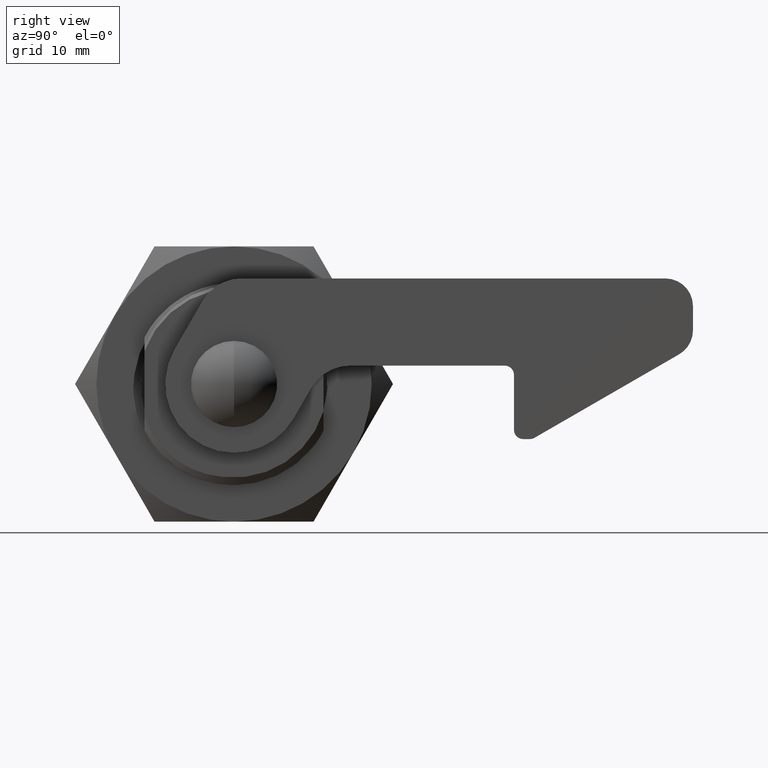
[diagram: clean part render]
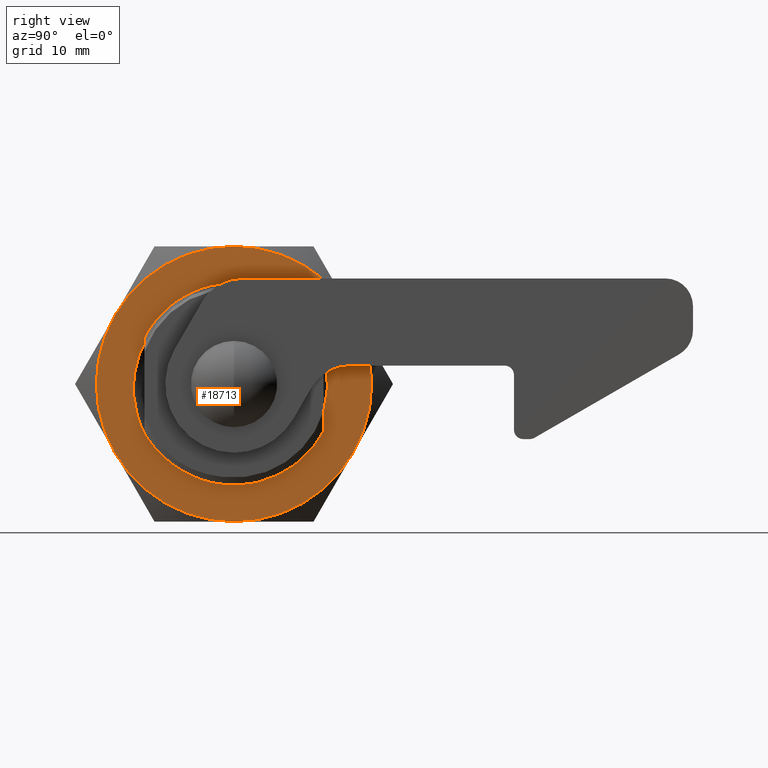
[diagram: same view with one face highlighted and labeled with its STEP entity id]
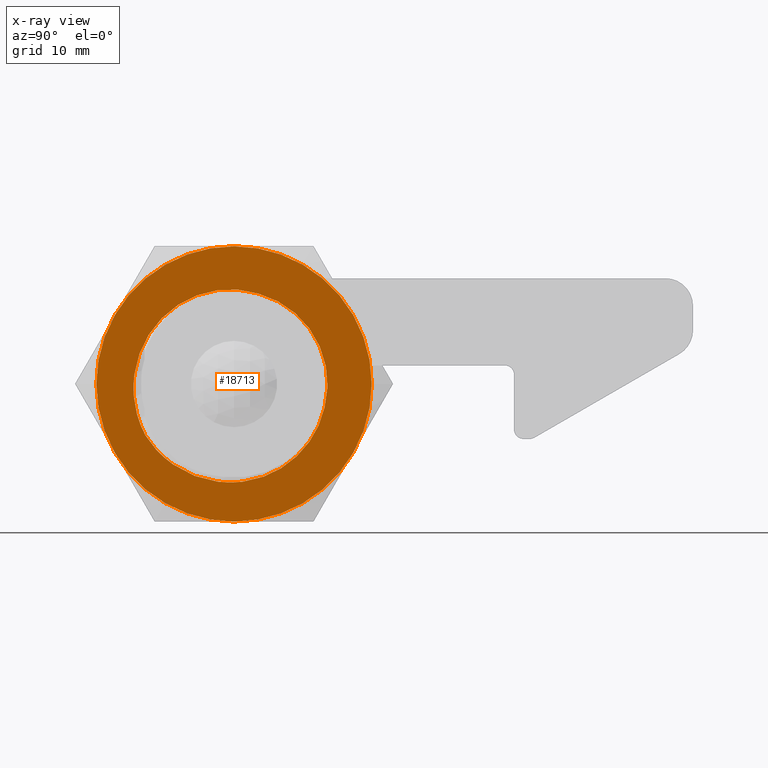
[diagram: x-ray of the same camera — body ghosted, the highlighted face saturated]
A machine part, right view. The second image highlights one B-rep face of the part: STEP entity #18713.
The next image is the same camera in x-ray: the body ghosted, the highlighted face saturated — about 0% of this face is hidden behind the body in this view.
In plain terms, the highlighted planar face has unit normal (-1, 0, 0).
Its self-contained STEP definition (entity closure, byte-faithful):
#20 = CARTESIAN_POINT ( 'NONE',  ( 9.638937201804241200, -5.000000000000006200, -3.441095731973845800 ) ) ;
#113 = CARTESIAN_POINT ( 'NONE',  ( -0.7491318615024874500, -4.999999999999996400, 10.33308777078296000 ) ) ;
#203 = CARTESIAN_POINT ( 'NONE',  ( -8.619407604147705000, -5.000000000000000900, 6.333025607650469600 ) ) ;
#232 = DIRECTION ( 'NONE',  ( 0.0000000000000000000, 1.000000000000000000, 0.0000000000000000000 ) ) ;
#687 = DIRECTION ( 'NONE',  ( 0.0000000000000000000, 0.0000000000000000000, 1.000000000000000000 ) ) ;
#1137 = ORIENTED_EDGE ( 'NONE', *, *, #17302, .T. ) ;
#1396 = EDGE_CURVE ( 'NONE', #1576, #3634, #3508, .T. ) ;
#1576 = VERTEX_POINT ( 'NONE', #5989 ) ;
#1843 = VERTEX_POINT ( 'NONE', #10515 ) ;
#2014 = CARTESIAN_POINT ( 'NONE',  ( -5.150565388679468400, -5.000000000000000900, -9.651778640270753900 ) ) ;
#2102 = CARTESIAN_POINT ( 'NONE',  ( 4.852672220566260500, -4.999999999999996400, -9.389442033987098300 ) ) ;
#2194 = CARTESIAN_POINT ( 'NONE',  ( 9.854779545596841200, -4.999999999995449900, -2.592184427791759800 ) ) ;
#2288 = CARTESIAN_POINT ( 'NONE',  ( -2.887396043328178700, -4.999999999999998200, 10.00964325858394600 ) ) ;
#2379 = CARTESIAN_POINT ( 'NONE',  ( -9.805157073379851000, -5.000000000000001800, 4.524716647803884100 ) ) ;
#2455 = EDGE_LOOP ( 'NONE', ( #16773, #15636, #27253, #22678, #5815, #7973 ) ) ;
#2625 = CARTESIAN_POINT ( 'NONE',  ( -10.78667158833198800, -5.000000000000000000, -2.843706243014712000 ) ) ;
#2913 = VERTEX_POINT ( 'NONE', #21080 ) ;
#3383 = DIRECTION ( 'NONE',  ( -0.0000000000000000000, -1.000000000000000000, -0.0000000000000000000 ) ) ;
#3508 = CIRCLE ( 'NONE', #16236, 14.99999999984458100 ) ;
#3634 = VERTEX_POINT ( 'NONE', #8472 ) ;
#4077 = DIRECTION ( 'NONE',  ( -0.0000000000000000000, -1.000000000000000000, -0.0000000000000000000 ) ) ;
#4178 = CARTESIAN_POINT ( 'NONE',  ( -3.538098540741268800, -4.999999999999999100, -10.30691911433999100 ) ) ;
#4271 = CARTESIAN_POINT ( 'NONE',  ( 6.275943887850023600, -4.999999999999999100, -8.380862123255395700 ) ) ;
#4363 = CARTESIAN_POINT ( 'NONE',  ( 2.682492182260685100, -5.000000000000000000, 9.830581655873318800 ) ) ;
#4448 = CARTESIAN_POINT ( 'NONE',  ( -4.130265647580450200, -5.000000000000000900, 9.621697935946748700 ) ) ;
#4543 = CARTESIAN_POINT ( 'NONE',  ( -10.44157008223177900, -5.000000000000004400, 2.905771480749146800 ) ) ;
#4565 = CARTESIAN_POINT ( 'NONE',  ( -9.666904424037920100, -5.000000000000000000, -5.581189911867869400 ) ) ;
#4781 = CARTESIAN_POINT ( 'NONE',  ( -10.36071793622376100, -5.000000000000000000, -4.280474703494713000 ) ) ;
#5815 = ORIENTED_EDGE ( 'NONE', *, *, #18686, .T. ) ;
#5989 = CARTESIAN_POINT ( 'NONE',  ( -9.765044891690349400E-014, -5.000000000000000000, 14.99999999984460100 ) ) ;
#6021 = EDGE_CURVE ( 'NONE', #25735, #11402, #14921, .T. ) ;
#6334 = CARTESIAN_POINT ( 'NONE',  ( -1.414320372416033400, -4.999999999999995600, -10.69588938915782200 ) ) ;
#6422 = DIRECTION ( 'NONE',  ( 0.0000000000000000000, 1.000000000000000000, 0.0000000000000000000 ) ) ;
#6428 = CARTESIAN_POINT ( 'NONE',  ( 7.226782964558676500, -4.999999999999993800, -7.503261956684021100 ) ) ;
#6557 = ORIENTED_EDGE ( 'NONE', *, *, #28000, .F. ) ;
#6613 = CARTESIAN_POINT ( 'NONE',  ( -5.307977201119404000, -4.999999999999998200, 9.087251415557743100 ) ) ;
#6643 = CARTESIAN_POINT ( 'NONE',  ( 0.0000000000000000000, -5.000000000000000000, 0.0000000000000000000 ) ) ;
#6713 = CARTESIAN_POINT ( 'NONE',  ( -10.76305664415665900, -5.000000000000006200, 1.649752460926788400 ) ) ;
#6736 = CARTESIAN_POINT ( 'NONE',  ( -7.856057407233602200, -5.000000000000000000, -7.919678671687544900 ) ) ;
#7073 = B_SPLINE_CURVE_WITH_KNOTS ( 'NONE', 3,
 ( #15554, #2625, #4781, #19897 ),
 .UNSPECIFIED., .F., .F.,
 ( 4, 4 ),
 ( 1.054656235235956700E-016, 0.004421761626893663500 ),
 .UNSPECIFIED. ) ;
#7084 = CIRCLE ( 'NONE', #17287, 14.99999999984458100 ) ;
#7643 = EDGE_CURVE ( 'NONE', #1843, #24861, #13496, .T. ) ;
#7971 = DIRECTION ( 'NONE',  ( -0.0000000000000000000, -1.000000000000000000, -0.0000000000000000000 ) ) ;
#7973 = ORIENTED_EDGE ( 'NONE', *, *, #6021, .T. ) ;
#8472 = CARTESIAN_POINT ( 'NONE',  ( -12.99038105663200000, -5.000000000000000000, 7.499999999922290600 ) ) ;
#8500 = CARTESIAN_POINT ( 'NONE',  ( -0.1102707083155850100, -4.999999999999989300, -10.74123442100537500 ) ) ;
#8599 = CARTESIAN_POINT ( 'NONE',  ( 8.067051736108254500, -4.999999999999999100, -6.509766569931755100 ) ) ;
#8780 = CARTESIAN_POINT ( 'NONE',  ( -6.422518212492810200, -5.000000000000000000, 8.404591546600812500 ) ) ;
#8873 = CARTESIAN_POINT ( 'NONE',  ( -10.93379493164639600, -4.999999999999999100, 0.3676373433193436100 ) ) ;
#8879 = CARTESIAN_POINT ( 'NONE',  ( 9.854779545596841200, -4.999999999995449900, -2.592184427791759800 ) ) ;
#9362 = VERTEX_POINT ( 'NONE', #12578 ) ;
#9775 = FACE_BOUND ( 'NONE', #21433, .T. ) ;
#10450 = CIRCLE ( 'NONE', #22012, 14.99999999984458100 ) ;
#10515 = CARTESIAN_POINT ( 'NONE',  ( -12.99038105663201900, -5.000000000000000000, -7.499999999922219600 ) ) ;
#10638 = VERTEX_POINT ( 'NONE', #27309 ) ;
#10690 = CARTESIAN_POINT ( 'NONE',  ( 1.176857826528975700, -5.000000000000000000, -10.63067362096821700 ) ) ;
#10781 = CARTESIAN_POINT ( 'NONE',  ( 8.778916920157769300, -5.000000000000000000, -5.418554700547577600 ) ) ;
#10865 = CARTESIAN_POINT ( 'NONE',  ( 1.843587548614458800, -5.000000000000000900, 10.06724437853415400 ) ) ;
#10960 = CARTESIAN_POINT ( 'NONE',  ( -7.434648564287187800, -4.999999999999996400, 7.596545352344830500 ) ) ;
#10988 = CARTESIAN_POINT ( 'NONE',  ( 0.0000000000000000000, -5.000000000000000000, 0.0000000000000000000 ) ) ;
#11056 = CARTESIAN_POINT ( 'NONE',  ( -10.95137420624734800, -4.999999999999998200, -0.9397717886165578600 ) ) ;
#11402 = VERTEX_POINT ( 'NONE', #25754 ) ;
#11672 = EDGE_CURVE ( 'NONE', #18803, #9362, #11945, .T. ) ;
#11945 = B_SPLINE_CURVE_WITH_KNOTS ( 'NONE', 3,
 ( #4565, #21761, #6736, #21856 ),
 .UNSPECIFIED., .F., .F.,
 ( 4, 4 ),
 ( 8.036095970540328500E-017, 0.004421758462768273800 ),
 .UNSPECIFIED. ) ;
#12003 = DIRECTION ( 'NONE',  ( -0.0000000000000000000, -1.000000000000000000, -0.0000000000000000000 ) ) ;
#12578 = CARTESIAN_POINT ( 'NONE',  ( -6.647646987011669700, -5.000000000000000000, -8.764062387729389100 ) ) ;
#12774 = CARTESIAN_POINT ( 'NONE',  ( -6.647646987011669700, -5.000000000000000000, -8.764062387729389100 ) ) ;
#12862 = CARTESIAN_POINT ( 'NONE',  ( 2.449263051062681400, -4.999999999999993800, -10.36071787088453400 ) ) ;
#12955 = CARTESIAN_POINT ( 'NONE',  ( 9.344957942948045800, -5.000000000000006200, -4.256413508494223800 ) ) ;
#13046 = CARTESIAN_POINT ( 'NONE',  ( 0.5509005036531096100, -4.999999999999996400, 10.27053448166372400 ) ) ;
#13144 = CARTESIAN_POINT ( 'NONE',  ( -8.339841270712954100, -4.999999999999997300, 6.670531429958162000 ) ) ;
#13171 = DIRECTION ( 'NONE',  ( 0.0000000000000000000, 0.0000000000000000000, 1.000000000000000000 ) ) ;
#13424 = ORIENTED_EDGE ( 'NONE', *, *, #20515, .F. ) ;
#13496 = CIRCLE ( 'NONE', #19034, 14.99999999984458100 ) ;
#13498 = B_SPLINE_CURVE_WITH_KNOTS ( 'NONE', 3,
 ( #12774, #25733, #14943, #2014, #17112, #4178, #19276, #6334, #21459, #8500, #23658, #10690, #25828, #12862, #28023, #15039, #2102, #17207, #4271, #19371, #6428, #21553, #8599, #23745, #10781, #25916, #12955, #20, #15125, #2194 ),
 .UNSPECIFIED., .F., .F.,
 ( 4, 2, 2, 2, 2, 2, 2, 2, 2, 2, 2, 2, 2, 2, 4 ),
 ( 5.434005713344057700E-017, 0.001305055688224699500, 0.002610111376449344400, 0.005220222752898635000, 0.006525278441123279200, 0.007830334129347924300, 0.009135389817572569400, 0.01044044550579721400, 0.01305055688224650300, 0.01435561257047115000, 0.01566066825869579300, 0.01696572394692043300, 0.01827077963514507600, 0.01957583532336971300, 0.02088089101159435300 ),
 .UNSPECIFIED. ) ;
#13616 = DIRECTION ( 'NONE',  ( 0.0000000000000000000, 1.000000000000000000, 0.0000000000000000000 ) ) ;
#13744 = VERTEX_POINT ( 'NONE', #8879 ) ;
#14921 = CIRCLE ( 'NONE', #20113, 14.99999999984458100 ) ;
#14943 = CARTESIAN_POINT ( 'NONE',  ( -5.918259123207601400, -5.000000000000000900, -9.241884770765413000 ) ) ;
#15039 = CARTESIAN_POINT ( 'NONE',  ( 4.086199617792537700, -4.999999999999999100, -9.784762768436820600 ) ) ;
#15125 = CARTESIAN_POINT ( 'NONE',  ( 9.760954598865389200, -5.000000000000002700, -3.019498928660155500 ) ) ;
#15212 = CARTESIAN_POINT ( 'NONE',  ( -1.608695768567571300, -4.999999999999999100, 10.26771121295459100 ) ) ;
#15310 = CARTESIAN_POINT ( 'NONE',  ( -9.387070100990213100, -5.000000000000001800, 5.278776332791164100 ) ) ;
#15339 = DIRECTION ( 'NONE',  ( 0.0000000000000000000, 0.0000000000000000000, 1.000000000000000000 ) ) ;
#15554 = CARTESIAN_POINT ( 'NONE',  ( -10.91372415477802000, -5.000000000000000000, -1.375000026695415900 ) ) ;
#15636 = ORIENTED_EDGE ( 'NONE', *, *, #1396, .T. ) ;
#15878 = CIRCLE ( 'NONE', #27482, 10.19000000000000000 ) ;
#16236 = AXIS2_PLACEMENT_3D ( 'NONE', #20922, #7971, #23113 ) ;
#16298 = CARTESIAN_POINT ( 'NONE',  ( 0.0000000000000000000, -5.000000000000000000, 0.0000000000000000000 ) ) ;
#16773 = ORIENTED_EDGE ( 'NONE', *, *, #16935, .F. ) ;
#16775 = EDGE_CURVE ( 'NONE', #3634, #1843, #7084, .T. ) ;
#16935 = EDGE_CURVE ( 'NONE', #1576, #11402, #22991, .T. ) ;
#17017 = CARTESIAN_POINT ( 'NONE',  ( 0.0000000000000000000, -5.000000000000000000, 0.0000000000000000000 ) ) ;
#17112 = CARTESIAN_POINT ( 'NONE',  ( -4.751847506375965800, -4.999999999999999100, -9.834890410719964400 ) ) ;
#17207 = CARTESIAN_POINT ( 'NONE',  ( 5.933202804801651600, -4.999999999999998200, -8.648836026409112400 ) ) ;
#17287 = AXIS2_PLACEMENT_3D ( 'NONE', #17017, #4077, #19182 ) ;
#17302 = EDGE_CURVE ( 'NONE', #10638, #13744, #15878, .T. ) ;
#17391 = CARTESIAN_POINT ( 'NONE',  ( -3.310564338449126300, -5.000000000000002700, 9.896351109613478400 ) ) ;
#17414 = PLANE ( 'NONE',  #26388 ) ;
#17486 = CARTESIAN_POINT ( 'NONE',  ( -10.29941504282285100, -5.000000000000000900, 3.320974963856185600 ) ) ;
#18468 = DIRECTION ( 'NONE',  ( 8.881784197001252300E-016, 0.0000000000000000000, 1.000000000000000000 ) ) ;
#18523 = B_SPLINE_CURVE_WITH_KNOTS ( 'NONE', 3,
 ( #4363, #21644, #10865, #26016, #13046, #113, #15212, #2288, #17391, #4448, #19557, #6613, #21736, #8780, #23936, #10960, #26104, #13144, #203, #15310, #2379, #17486, #4543, #19649, #6713, #21832, #8873, #24033, #11056, #26204 ),
 .UNSPECIFIED., .F., .F.,
 ( 4, 2, 2, 2, 2, 2, 2, 2, 2, 2, 2, 2, 2, 2, 4 ),
 ( 4.596912361788801400E-005, 0.001350443569155663400, 0.002654918014693438800, 0.005263866905768990100, 0.006568341351306765900, 0.007872815796844541800, 0.009177290242382316700, 0.01048176468792009200, 0.01178623913345786700, 0.01309071357899564300, 0.01569966247007119000, 0.01700413691560896700, 0.01830861136114674300, 0.01961308580668451700, 0.02091756025222229000 ),
 .UNSPECIFIED. ) ;
#18686 = EDGE_CURVE ( 'NONE', #24861, #25735, #10450, .T. ) ;
#18713 = ADVANCED_FACE ( 'NONE', ( #21257, #9775 ), #17414, .F. ) ;
#18803 = VERTEX_POINT ( 'NONE', #19876 ) ;
#19034 = AXIS2_PLACEMENT_3D ( 'NONE', #24970, #12003, #27144 ) ;
#19182 = DIRECTION ( 'NONE',  ( 0.0000000000000000000, 0.0000000000000000000, 1.000000000000000000 ) ) ;
#19276 = CARTESIAN_POINT ( 'NONE',  ( -2.703687009923020600, -4.999999999999996400, -10.52205155327999900 ) ) ;
#19365 = CARTESIAN_POINT ( 'NONE',  ( 0.0000000000000000000, -5.000000000000000000, 0.0000000000000000000 ) ) ;
#19371 = CARTESIAN_POINT ( 'NONE',  ( 6.922260182655265700, -4.999999999999999100, -7.808401426838557300 ) ) ;
#19557 = CARTESIAN_POINT ( 'NONE',  ( -4.529724541998622700, -4.999999999999998200, 9.459822060423013200 ) ) ;
#19629 = CARTESIAN_POINT ( 'NONE',  ( 0.0000000000000000000, -5.000000000000000000, -14.99999999984460100 ) ) ;
#19649 = CARTESIAN_POINT ( 'NONE',  ( -10.67280194800956700, -5.000000000000003600, 2.071352330506805100 ) ) ;
#19876 = CARTESIAN_POINT ( 'NONE',  ( -9.666904424037920100, -5.000000000000000000, -5.581189911867869400 ) ) ;
#19897 = CARTESIAN_POINT ( 'NONE',  ( -9.666904424037920100, -5.000000000000000000, -5.581189911867869400 ) ) ;
#20113 = AXIS2_PLACEMENT_3D ( 'NONE', #16298, #3383, #18468 ) ;
#20515 = EDGE_CURVE ( 'NONE', #9362, #13744, #13498, .T. ) ;
#20558 = EDGE_CURVE ( 'NONE', #10638, #2913, #18523, .T. ) ;
#20583 = CARTESIAN_POINT ( 'NONE',  ( 12.99038105663201900, -5.000000000000000000, -7.499999999922209800 ) ) ;
#20922 = CARTESIAN_POINT ( 'NONE',  ( 0.0000000000000000000, -5.000000000000000000, 0.0000000000000000000 ) ) ;
#21080 = CARTESIAN_POINT ( 'NONE',  ( -10.91372415477802000, -5.000000000000000000, -1.375000026695415900 ) ) ;
#21257 = FACE_OUTER_BOUND ( 'NONE', #2455, .T. ) ;
#21433 = EDGE_LOOP ( 'NONE', ( #25281, #1137, #13424, #26481, #6557 ) ) ;
#21459 = CARTESIAN_POINT ( 'NONE',  ( -0.9763425491826662700, -4.999999999999987600, -10.72848333765721000 ) ) ;
#21547 = DIRECTION ( 'NONE',  ( 0.0000000000000000000, 0.0000000000000000000, 1.000000000000000000 ) ) ;
#21553 = CARTESIAN_POINT ( 'NONE',  ( 7.798446571042400200, -4.999999999999993800, -6.855051912225538200 ) ) ;
#21644 = CARTESIAN_POINT ( 'NONE',  ( 2.265968095758975400, -4.999999999999999100, 9.962840086623973700 ) ) ;
#21736 = CARTESIAN_POINT ( 'NONE',  ( -5.687092063002585200, -5.000000000000000000, 8.876358354759073400 ) ) ;
#21761 = CARTESIAN_POINT ( 'NONE',  ( -8.887358922856515500, -5.000000000000000000, -6.832407374676039400 ) ) ;
#21832 = CARTESIAN_POINT ( 'NONE',  ( -10.89355189215758400, -5.000000000000007100, 0.7978947520152160900 ) ) ;
#21856 = CARTESIAN_POINT ( 'NONE',  ( -6.647646987011669700, -5.000000000000000000, -8.764062387729389100 ) ) ;
#22012 = AXIS2_PLACEMENT_3D ( 'NONE', #10988, #26132, #13171 ) ;
#22678 = ORIENTED_EDGE ( 'NONE', *, *, #7643, .T. ) ;
#22991 = CIRCLE ( 'NONE', #26007, 14.99999999984460100 ) ;
#23113 = DIRECTION ( 'NONE',  ( 0.0000000000000000000, 0.0000000000000000000, 1.000000000000000000 ) ) ;
#23658 = CARTESIAN_POINT ( 'NONE',  ( 0.3204096086988811300, -5.000000000000000900, -10.72210813724865900 ) ) ;
#23745 = CARTESIAN_POINT ( 'NONE',  ( 8.557856274789577000, -4.999999999999997300, -5.790185217756810900 ) ) ;
#23936 = CARTESIAN_POINT ( 'NONE',  ( -6.771746850444237100, -4.999999999999997300, 8.148317128610893100 ) ) ;
#24033 = CARTESIAN_POINT ( 'NONE',  ( -10.96284637270156100, -4.999999999999999100, -0.5017813460787102800 ) ) ;
#24861 = VERTEX_POINT ( 'NONE', #19629 ) ;
#24970 = CARTESIAN_POINT ( 'NONE',  ( 0.0000000000000000000, -5.000000000000000000, 0.0000000000000000000 ) ) ;
#25281 = ORIENTED_EDGE ( 'NONE', *, *, #20558, .F. ) ;
#25733 = CARTESIAN_POINT ( 'NONE',  ( -6.289393308947480500, -5.000000000000000000, -9.014394201248492800 ) ) ;
#25735 = VERTEX_POINT ( 'NONE', #20583 ) ;
#25754 = CARTESIAN_POINT ( 'NONE',  ( 12.99038105663197800, -5.000000000000000000, 7.499999999922299500 ) ) ;
#25828 = CARTESIAN_POINT ( 'NONE',  ( 1.602656479458642600, -4.999999999999995600, -10.55869831165239800 ) ) ;
#25916 = CARTESIAN_POINT ( 'NONE',  ( 9.172787568695069300, -5.000000000000002700, -4.651824404657038100 ) ) ;
#26007 = AXIS2_PLACEMENT_3D ( 'NONE', #19365, #6422, #21547 ) ;
#26016 = CARTESIAN_POINT ( 'NONE',  ( 0.9872765554697112700, -5.000000000000000900, 10.22112004195336800 ) ) ;
#26104 = CARTESIAN_POINT ( 'NONE',  ( -7.748317254809352400, -5.000000000000000000, 7.301043156370388600 ) ) ;
#26132 = DIRECTION ( 'NONE',  ( -0.0000000000000000000, -1.000000000000000000, -0.0000000000000000000 ) ) ;
#26204 = CARTESIAN_POINT ( 'NONE',  ( -10.91372415477802000, -5.000000000000000000, -1.375000026695415900 ) ) ;
#26388 = AXIS2_PLACEMENT_3D ( 'NONE', #6643, #232, #15339 ) ;
#26481 = ORIENTED_EDGE ( 'NONE', *, *, #11672, .F. ) ;
#26596 = CARTESIAN_POINT ( 'NONE',  ( 0.0000000000000000000, -4.999999999995449900, 0.0000000000000000000 ) ) ;
#27144 = DIRECTION ( 'NONE',  ( 1.776356839400250500E-015, 0.0000000000000000000, 1.000000000000000000 ) ) ;
#27253 = ORIENTED_EDGE ( 'NONE', *, *, #16775, .T. ) ;
#27309 = CARTESIAN_POINT ( 'NONE',  ( 2.682492182260685100, -5.000000000000000000, 9.830581655873318800 ) ) ;
#27482 = AXIS2_PLACEMENT_3D ( 'NONE', #26596, #13616, #687 ) ;
#28000 = EDGE_CURVE ( 'NONE', #2913, #18803, #7073, .T. ) ;
#28023 = CARTESIAN_POINT ( 'NONE',  ( 2.869312737065121700, -5.000000000000000000, -10.23438764983597900 ) ) ;